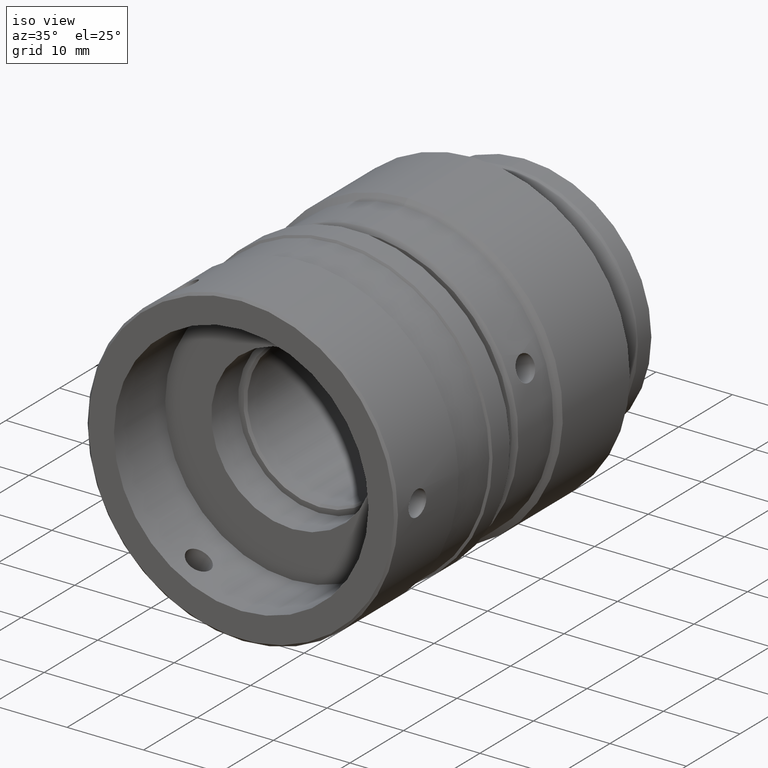
[diagram: clean part render]
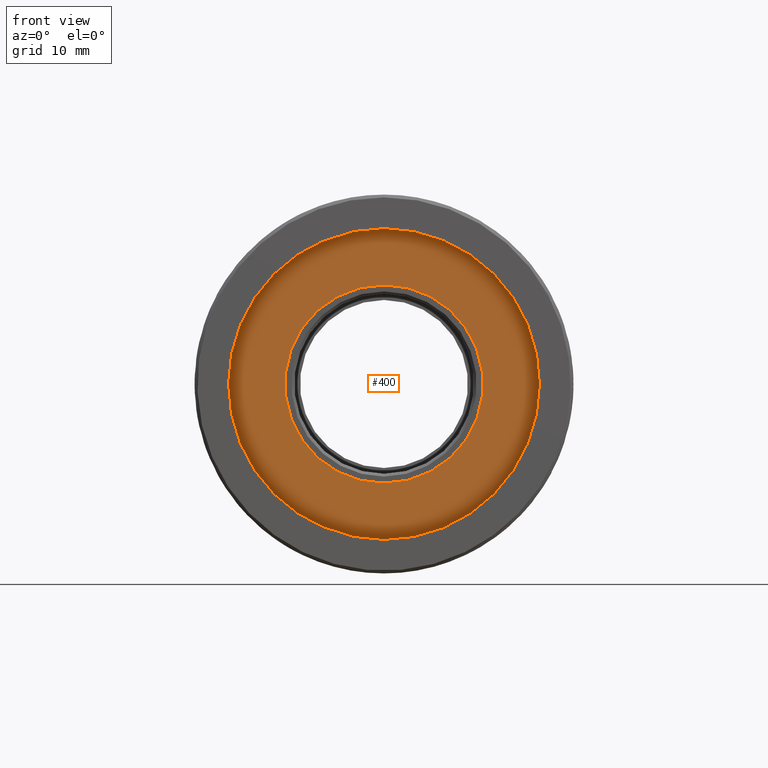
[diagram: tour spotlight — one face highlighted and labeled with its STEP entity id]
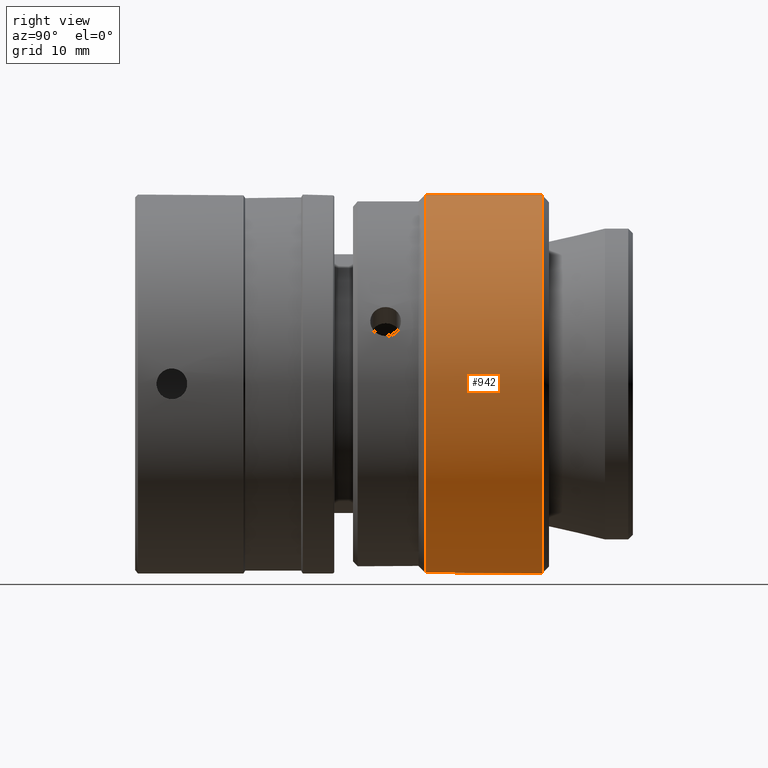
[diagram: tour spotlight — one face highlighted and labeled with its STEP entity id]
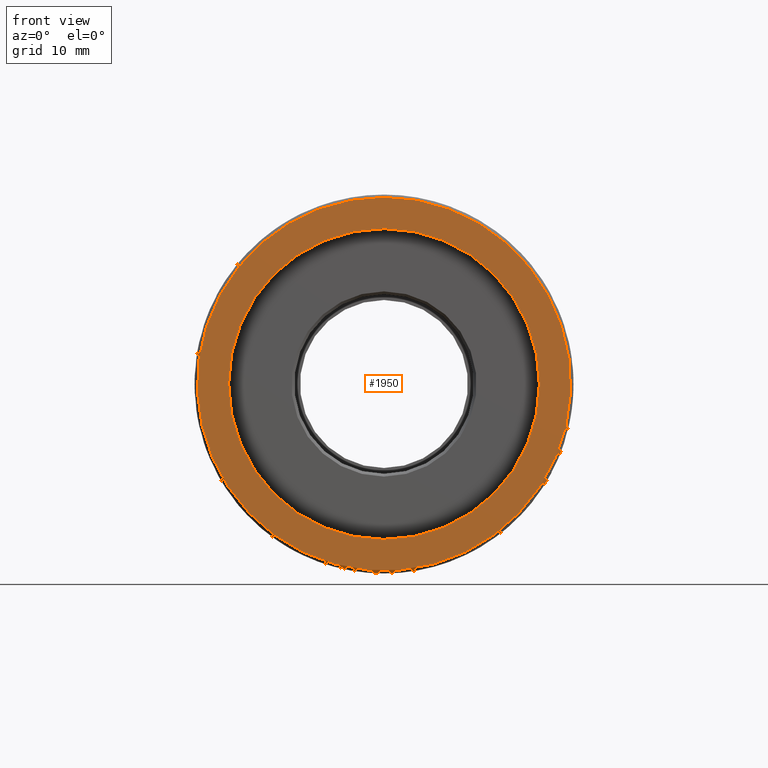
[diagram: tour spotlight — one face highlighted and labeled with its STEP entity id]
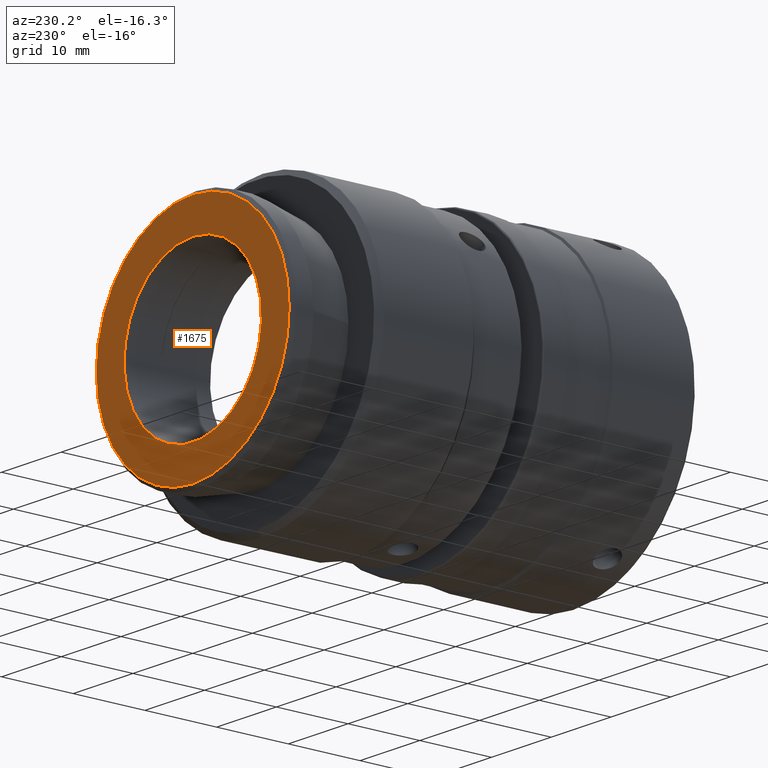
[diagram: tour spotlight — one face highlighted and labeled with its STEP entity id]
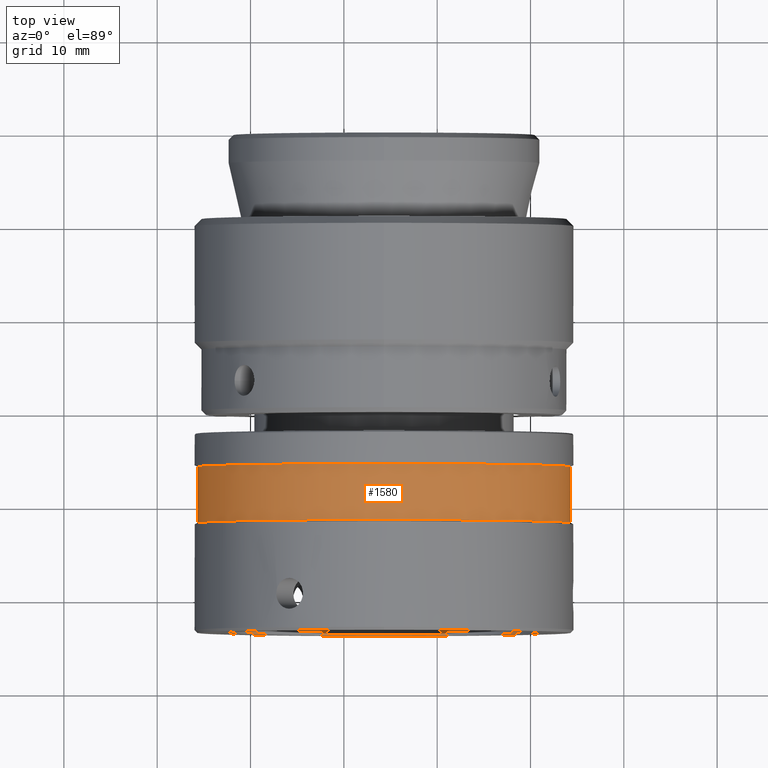
[diagram: tour spotlight — one face highlighted and labeled with its STEP entity id]
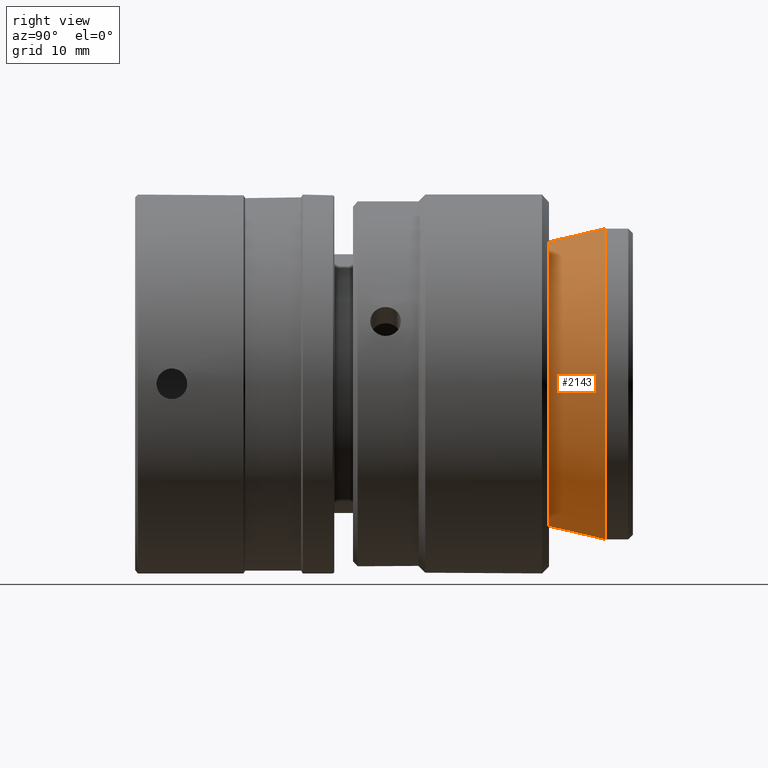
[diagram: tour spotlight — one face highlighted and labeled with its STEP entity id]
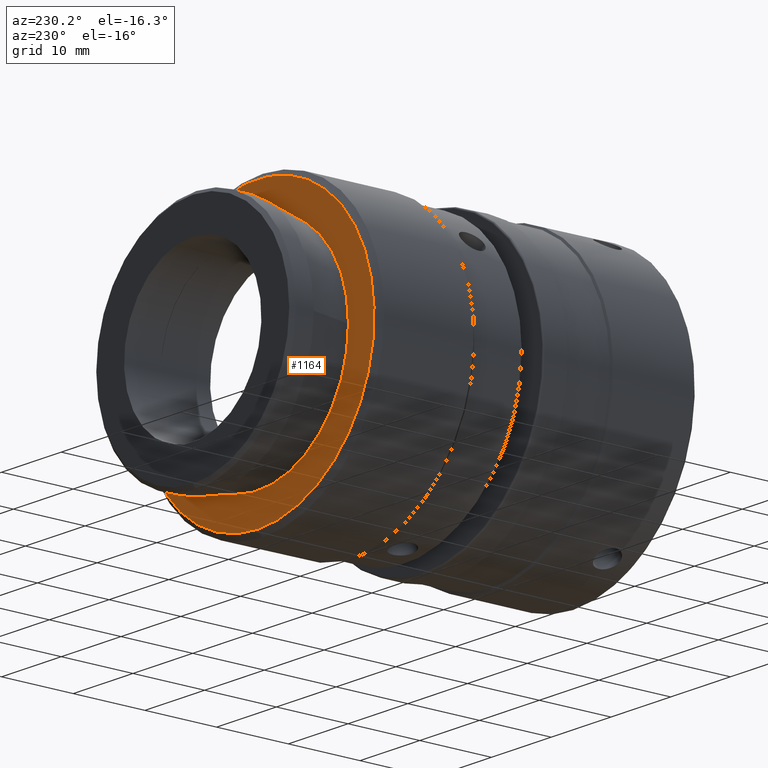
[diagram: tour spotlight — one face highlighted and labeled with its STEP entity id]
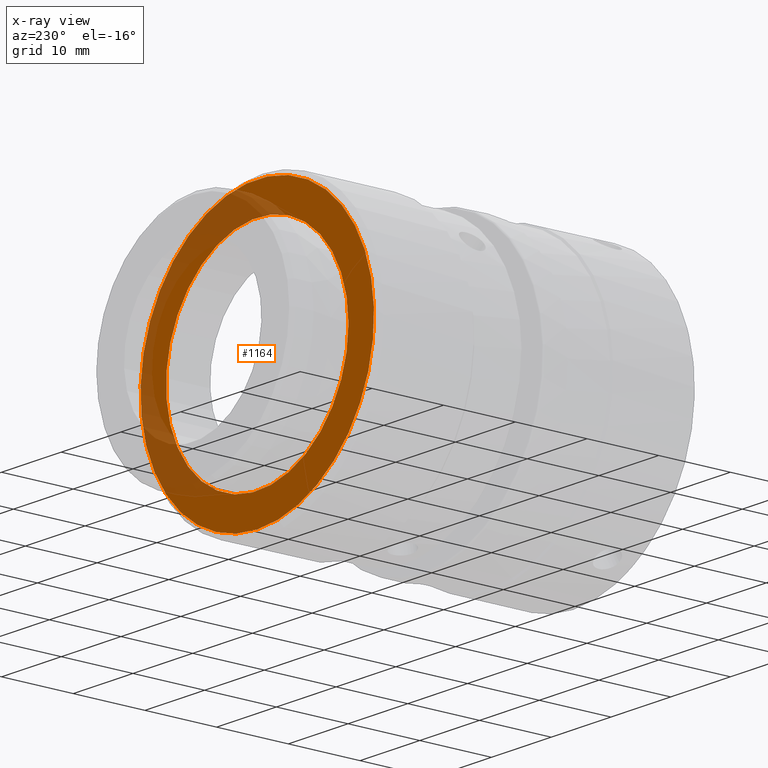
[diagram: x-ray of the same camera — body ghosted, this tour face saturated]
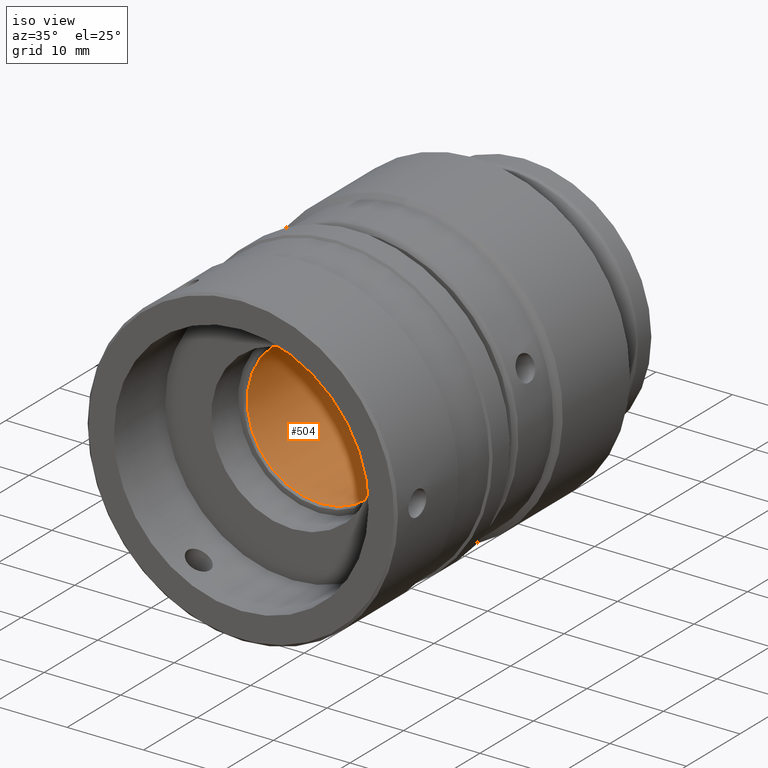
[diagram: tour spotlight — one face highlighted and labeled with its STEP entity id]
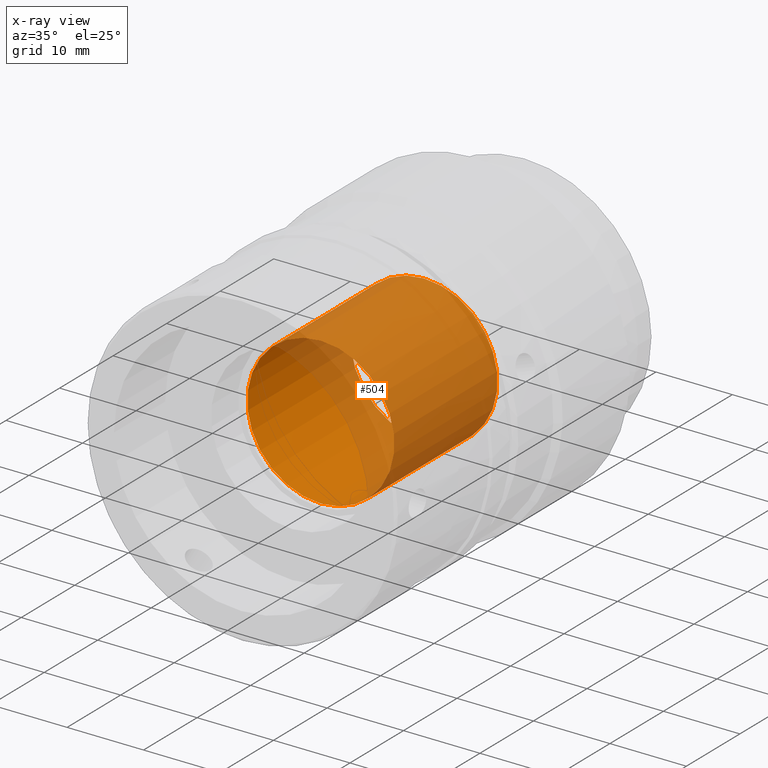
[diagram: x-ray of the same camera — body ghosted, this tour face saturated]
A machine part: a face-by-face anatomy tour. The part has 37 B-rep faces; the first image is the clean iso view, then the 8 largest visible faces are spotlighted one at a time (largest first), each with its STEP entity span.

Face 1 — front view, entity #400. In plain terms, the highlighted planar face has unit normal (0, -1, 0).
Definition (entity closure, byte-faithful):
#341 = FACE_BOUND ( 'NONE', #1559, .T. ) ;
#348 = ORIENTED_EDGE ( 'NONE', *, *, #1361, .T. ) ;
#400 = ADVANCED_FACE ( 'NONE', ( #1589, #341 ), #875, .T. ) ;
#499 = CARTESIAN_POINT ( 'NONE',  ( 14.30252365930601144, -14.05017350157723044, -6.938893903907228378E-15 ) ) ;
#529 = VERTEX_POINT ( 'NONE', #845 ) ;
#714 = CIRCLE ( 'NONE', #1160, 16.64999999999999858 ) ;
#845 = CARTESIAN_POINT ( 'NONE',  ( 14.30252365930601144, -14.05017350157723044, -16.65000000000000568 ) ) ;
#851 = DIRECTION ( 'NONE',  ( 0.000000000000000000, 0.000000000000000000, -1.000000000000000000 ) ) ;
#875 = PLANE ( 'NONE',  #1088 ) ;
#1088 = AXIS2_PLACEMENT_3D ( 'NONE', #1229, #1550, #2258 ) ;
#1098 = ORIENTED_EDGE ( 'NONE', *, *, #1816, .T. ) ;
#1160 = AXIS2_PLACEMENT_3D ( 'NONE', #1201, #2253, #1921 ) ;
#1172 = CIRCLE ( 'NONE', #1732, 10.62500000000000178 ) ;
#1201 = CARTESIAN_POINT ( 'NONE',  ( 14.30252365930601144, -14.05017350157723044, -6.938893903907228378E-15 ) ) ;
#1229 = CARTESIAN_POINT ( 'NONE',  ( 30.95252365930601002, -14.05017350157723044, -6.938893903907228378E-15 ) ) ;
#1361 = EDGE_CURVE ( 'NONE', #1495, #1495, #1172, .T. ) ;
#1495 = VERTEX_POINT ( 'NONE', #2205 ) ;
#1550 = DIRECTION ( 'NONE',  ( 0.000000000000000000, -1.000000000000000000, 0.000000000000000000 ) ) ;
#1559 = EDGE_LOOP ( 'NONE', ( #348 ) ) ;
#1589 = FACE_OUTER_BOUND ( 'NONE', #1956, .T. ) ;
#1732 = AXIS2_PLACEMENT_3D ( 'NONE', #499, #1915, #851 ) ;
#1816 = EDGE_CURVE ( 'NONE', #529, #529, #714, .T. ) ;
#1915 = DIRECTION ( 'NONE',  ( 0.000000000000000000, 1.000000000000000000, 0.000000000000000000 ) ) ;
#1921 = DIRECTION ( 'NONE',  ( 0.000000000000000000, 0.000000000000000000, -1.000000000000000000 ) ) ;
#1956 = EDGE_LOOP ( 'NONE', ( #1098 ) ) ;
#2205 = CARTESIAN_POINT ( 'NONE',  ( 14.30252365930601144, -14.05017350157723044, -10.62500000000000888 ) ) ;
#2253 = DIRECTION ( 'NONE',  ( -0.000000000000000000, -1.000000000000000000, -0.000000000000000000 ) ) ;
#2258 = DIRECTION ( 'NONE',  ( 0.000000000000000000, -0.000000000000000000, -1.000000000000000000 ) ) ;

Face 2 — right view, entity #942. In plain terms, the highlighted cylindrical surface (bore or boss wall) has radius 20.3 mm, axis along (0, 1, 0).
Definition (entity closure, byte-faithful):
#134 = VERTEX_POINT ( 'NONE', #311 ) ;
#268 = CYLINDRICAL_SURFACE ( 'NONE', #1462, 20.30000000000001137 ) ;
#311 = CARTESIAN_POINT ( 'NONE',  ( 14.30252365930601322, 19.98982649842304937, 20.30000000000001137 ) ) ;
#321 = EDGE_CURVE ( 'NONE', #134, #134, #790, .T. ) ;
#325 = ORIENTED_EDGE ( 'NONE', *, *, #321, .T. ) ;
#639 = CARTESIAN_POINT ( 'NONE',  ( 14.30252365930601322, 7.489826498423066248, 20.30000000000001137 ) ) ;
#781 = FACE_OUTER_BOUND ( 'NONE', #1438, .T. ) ;
#790 = CIRCLE ( 'NONE', #2059, 20.30000000000001137 ) ;
#816 = DIRECTION ( 'NONE',  ( 0.000000000000000000, 0.000000000000000000, 1.000000000000000000 ) ) ;
#817 = EDGE_CURVE ( 'NONE', #1725, #1725, #1914, .T. ) ;
#900 = AXIS2_PLACEMENT_3D ( 'NONE', #1411, #2120, #1659 ) ;
#942 = ADVANCED_FACE ( 'NONE', ( #781, #2069 ), #268, .T. ) ;
#1073 = DIRECTION ( 'NONE',  ( -0.000000000000000000, -1.000000000000000000, -0.000000000000000000 ) ) ;
#1094 = DIRECTION ( 'NONE',  ( 0.000000000000000000, 0.000000000000000000, 1.000000000000000000 ) ) ;
#1175 = CARTESIAN_POINT ( 'NONE',  ( 14.30252365930601322, 32.80747209517100771, 0.000000000000000000 ) ) ;
#1355 = DIRECTION ( 'NONE',  ( 0.000000000000000000, 1.000000000000000000, 0.000000000000000000 ) ) ;
#1411 = CARTESIAN_POINT ( 'NONE',  ( 14.30252365930601322, 7.489826498423066248, 0.000000000000000000 ) ) ;
#1438 = EDGE_LOOP ( 'NONE', ( #325 ) ) ;
#1462 = AXIS2_PLACEMENT_3D ( 'NONE', #1175, #1355, #816 ) ;
#1596 = EDGE_LOOP ( 'NONE', ( #2032 ) ) ;
#1659 = DIRECTION ( 'NONE',  ( 0.000000000000000000, 0.000000000000000000, 1.000000000000000000 ) ) ;
#1725 = VERTEX_POINT ( 'NONE', #639 ) ;
#1914 = CIRCLE ( 'NONE', #900, 20.30000000000001137 ) ;
#1968 = CARTESIAN_POINT ( 'NONE',  ( 14.30252365930601322, 19.98982649842304937, 0.000000000000000000 ) ) ;
#2032 = ORIENTED_EDGE ( 'NONE', *, *, #817, .T. ) ;
#2059 = AXIS2_PLACEMENT_3D ( 'NONE', #1968, #1073, #1094 ) ;
#2069 = FACE_OUTER_BOUND ( 'NONE', #1596, .T. ) ;
#2120 = DIRECTION ( 'NONE',  ( 0.000000000000000000, 1.000000000000000000, 0.000000000000000000 ) ) ;

Face 3 — front view, entity #1950. In plain terms, the highlighted planar face has unit normal (0, -1, 0).
Definition (entity closure, byte-faithful):
#79 = PLANE ( 'NONE',  #125 ) ;
#125 = AXIS2_PLACEMENT_3D ( 'NONE', #2040, #1329, #429 ) ;
#198 = CARTESIAN_POINT ( 'NONE',  ( 14.30252365930601144, -23.61017350157762351, -6.938893903907228378E-15 ) ) ;
#294 = FACE_BOUND ( 'NONE', #1146, .T. ) ;
#395 = CARTESIAN_POINT ( 'NONE',  ( 14.30252365930601144, -23.61017350157761641, -6.938893903907228378E-15 ) ) ;
#429 = DIRECTION ( 'NONE',  ( 0.000000000000000000, -0.000000000000000000, -1.000000000000000000 ) ) ;
#602 = FACE_OUTER_BOUND ( 'NONE', #1984, .T. ) ;
#821 = VERTEX_POINT ( 'NONE', #969 ) ;
#831 = CIRCLE ( 'NONE', #871, 20.00000000000019185 ) ;
#871 = AXIS2_PLACEMENT_3D ( 'NONE', #395, #1444, #1260 ) ;
#895 = DIRECTION ( 'NONE',  ( 0.000000000000000000, 0.000000000000000000, -1.000000000000000000 ) ) ;
#969 = CARTESIAN_POINT ( 'NONE',  ( 14.30252365930601144, -23.61017350157761641, 20.00000000000018474 ) ) ;
#1115 = EDGE_CURVE ( 'NONE', #1848, #1848, #1278, .T. ) ;
#1146 = EDGE_LOOP ( 'NONE', ( #1995 ) ) ;
#1227 = EDGE_CURVE ( 'NONE', #821, #821, #831, .T. ) ;
#1260 = DIRECTION ( 'NONE',  ( 0.000000000000000000, 0.000000000000000000, 1.000000000000000000 ) ) ;
#1272 = DIRECTION ( 'NONE',  ( 0.000000000000000000, 1.000000000000000000, 0.000000000000000000 ) ) ;
#1278 = CIRCLE ( 'NONE', #1352, 16.64999999999999858 ) ;
#1329 = DIRECTION ( 'NONE',  ( 0.000000000000000000, -1.000000000000000000, 0.000000000000000000 ) ) ;
#1346 = CARTESIAN_POINT ( 'NONE',  ( 14.30252365930601144, -23.61017350157762351, -16.65000000000000568 ) ) ;
#1352 = AXIS2_PLACEMENT_3D ( 'NONE', #198, #1272, #895 ) ;
#1444 = DIRECTION ( 'NONE',  ( -0.000000000000000000, 1.000000000000000000, 0.000000000000000000 ) ) ;
#1848 = VERTEX_POINT ( 'NONE', #1346 ) ;
#1950 = ADVANCED_FACE ( 'NONE', ( #602, #294 ), #79, .T. ) ;
#1984 = EDGE_LOOP ( 'NONE', ( #2191 ) ) ;
#1995 = ORIENTED_EDGE ( 'NONE', *, *, #1115, .T. ) ;
#2040 = CARTESIAN_POINT ( 'NONE',  ( 34.30252365930619618, -23.61017350157762351, -6.938893903907228378E-15 ) ) ;
#2191 = ORIENTED_EDGE ( 'NONE', *, *, #1227, .F. ) ;

Face 4 — auxiliary view, entity #1675. In plain terms, the highlighted planar face has unit normal (0, -1, 0).
Definition (entity closure, byte-faithful):
#70 = EDGE_CURVE ( 'NONE', #213, #213, #1276, .T. ) ;
#199 = CARTESIAN_POINT ( 'NONE',  ( 14.30252365930601322, 29.73982649842304937, 0.000000000000000000 ) ) ;
#213 = VERTEX_POINT ( 'NONE', #1449 ) ;
#286 = CIRCLE ( 'NONE', #432, 16.14999999999999858 ) ;
#384 = DIRECTION ( 'NONE',  ( 0.000000000000000000, -1.000000000000000000, 0.000000000000000000 ) ) ;
#409 = CARTESIAN_POINT ( 'NONE',  ( 11.43308296087714915, 29.73982649842304937, -16.40087833252231420 ) ) ;
#432 = AXIS2_PLACEMENT_3D ( 'NONE', #1788, #384, #726 ) ;
#624 = ORIENTED_EDGE ( 'NONE', *, *, #1197, .F. ) ;
#726 = DIRECTION ( 'NONE',  ( 0.000000000000000000, 0.000000000000000000, -1.000000000000000000 ) ) ;
#1021 = EDGE_LOOP ( 'NONE', ( #1410 ) ) ;
#1197 = EDGE_CURVE ( 'NONE', #2058, #2058, #286, .T. ) ;
#1237 = AXIS2_PLACEMENT_3D ( 'NONE', #409, #1699, #2007 ) ;
#1276 = CIRCLE ( 'NONE', #1872, 11.50000000000001066 ) ;
#1284 = DIRECTION ( 'NONE',  ( 0.000000000000000000, 0.000000000000000000, 1.000000000000000000 ) ) ;
#1295 = DIRECTION ( 'NONE',  ( 0.000000000000000000, 1.000000000000000000, 0.000000000000000000 ) ) ;
#1298 = PLANE ( 'NONE',  #1237 ) ;
#1385 = EDGE_LOOP ( 'NONE', ( #624 ) ) ;
#1410 = ORIENTED_EDGE ( 'NONE', *, *, #70, .F. ) ;
#1449 = CARTESIAN_POINT ( 'NONE',  ( 14.30252365930601322, 29.73982649842304937, 11.50000000000001066 ) ) ;
#1648 = FACE_OUTER_BOUND ( 'NONE', #1385, .T. ) ;
#1674 = CARTESIAN_POINT ( 'NONE',  ( 14.30252365930601322, 29.73982649842304937, -16.14999999999999858 ) ) ;
#1675 = ADVANCED_FACE ( 'NONE', ( #1648, #2033 ), #1298, .F. ) ;
#1699 = DIRECTION ( 'NONE',  ( 0.000000000000000000, -1.000000000000000000, 0.000000000000000000 ) ) ;
#1788 = CARTESIAN_POINT ( 'NONE',  ( 14.30252365930601322, 29.73982649842304937, 0.000000000000000000 ) ) ;
#1872 = AXIS2_PLACEMENT_3D ( 'NONE', #199, #1295, #1284 ) ;
#2007 = DIRECTION ( 'NONE',  ( 0.000000000000000000, -0.000000000000000000, -1.000000000000000000 ) ) ;
#2033 = FACE_BOUND ( 'NONE', #1021, .T. ) ;
#2058 = VERTEX_POINT ( 'NONE', #1674 ) ;

Face 5 — top view, entity #1580. In plain terms, the highlighted cylindrical surface (bore or boss wall) has radius 20 mm, axis along (-0, -1, -0).
Definition (entity closure, byte-faithful):
#187 = DIRECTION ( 'NONE',  ( -0.000000000000000000, -1.000000000000000000, -0.000000000000000000 ) ) ;
#241 = DIRECTION ( 'NONE',  ( 0.000000000000000000, -1.000000000000000000, 0.000000000000000000 ) ) ;
#259 = EDGE_CURVE ( 'NONE', #945, #945, #1614, .T. ) ;
#392 = CARTESIAN_POINT ( 'NONE',  ( 14.30252365930601144, -23.31017350157762991, -6.938893903907228378E-15 ) ) ;
#402 = FACE_OUTER_BOUND ( 'NONE', #806, .T. ) ;
#420 = AXIS2_PLACEMENT_3D ( 'NONE', #1503, #241, #453 ) ;
#453 = DIRECTION ( 'NONE',  ( 0.000000000000000000, 0.000000000000000000, -1.000000000000000000 ) ) ;
#458 = AXIS2_PLACEMENT_3D ( 'NONE', #392, #187, #1424 ) ;
#519 = CARTESIAN_POINT ( 'NONE',  ( 14.30252365930601144, -11.81431868997687928, -20.00000000000000355 ) ) ;
#573 = CYLINDRICAL_SURFACE ( 'NONE', #458, 19.99999999999999645 ) ;
#687 = ORIENTED_EDGE ( 'NONE', *, *, #259, .T. ) ;
#721 = AXIS2_PLACEMENT_3D ( 'NONE', #1453, #1978, #1778 ) ;
#806 = EDGE_LOOP ( 'NONE', ( #2227 ) ) ;
#859 = EDGE_LOOP ( 'NONE', ( #687 ) ) ;
#945 = VERTEX_POINT ( 'NONE', #1178 ) ;
#1178 = CARTESIAN_POINT ( 'NONE',  ( 14.30252365930601144, -5.813378582337375811, -20.00000000000000355 ) ) ;
#1424 = DIRECTION ( 'NONE',  ( 0.000000000000000000, 0.000000000000000000, -1.000000000000000000 ) ) ;
#1453 = CARTESIAN_POINT ( 'NONE',  ( 14.30252365930601144, -5.813378582337375811, -6.938893903907228378E-15 ) ) ;
#1465 = FACE_OUTER_BOUND ( 'NONE', #859, .T. ) ;
#1503 = CARTESIAN_POINT ( 'NONE',  ( 14.30252365930601144, -11.81431868997687928, -6.938893903907228378E-15 ) ) ;
#1571 = VERTEX_POINT ( 'NONE', #519 ) ;
#1580 = ADVANCED_FACE ( 'NONE', ( #402, #1465 ), #573, .T. ) ;
#1614 = CIRCLE ( 'NONE', #721, 19.99999999999999645 ) ;
#1778 = DIRECTION ( 'NONE',  ( 0.000000000000000000, 0.000000000000000000, -1.000000000000000000 ) ) ;
#1906 = EDGE_CURVE ( 'NONE', #1571, #1571, #2233, .T. ) ;
#1978 = DIRECTION ( 'NONE',  ( -0.000000000000000000, -1.000000000000000000, -0.000000000000000000 ) ) ;
#2227 = ORIENTED_EDGE ( 'NONE', *, *, #1906, .F. ) ;
#2233 = CIRCLE ( 'NONE', #420, 19.99999999999999645 ) ;

Face 6 — right view, entity #2143. In plain terms, the highlighted conical surface has half-angle 13 deg.
Definition (entity closure, byte-faithful):
#221 = EDGE_LOOP ( 'NONE', ( #530 ) ) ;
#274 = VERTEX_POINT ( 'NONE', #2072 ) ;
#355 = AXIS2_PLACEMENT_3D ( 'NONE', #1452, #382, #1270 ) ;
#382 = DIRECTION ( 'NONE',  ( 3.125627884642895048E-16, 1.000000000000000000, -0.000000000000000000 ) ) ;
#416 = CARTESIAN_POINT ( 'NONE',  ( 14.30252365930601322, 26.73982649842303871, 0.000000000000000000 ) ) ;
#445 = ORIENTED_EDGE ( 'NONE', *, *, #637, .T. ) ;
#530 = ORIENTED_EDGE ( 'NONE', *, *, #1564, .T. ) ;
#626 = CARTESIAN_POINT ( 'NONE',  ( -0.9622671939405851305, 20.73982649842305293, 0.000000000000000000 ) ) ;
#637 = EDGE_CURVE ( 'NONE', #274, #274, #1980, .T. ) ;
#1024 = CARTESIAN_POINT ( 'NONE',  ( 14.30252365930601322, 26.73982649842304582, 0.000000000000000000 ) ) ;
#1141 = DIRECTION ( 'NONE',  ( 3.125627884642895048E-16, 1.000000000000000000, -0.000000000000000000 ) ) ;
#1187 = EDGE_LOOP ( 'NONE', ( #445 ) ) ;
#1270 = DIRECTION ( 'NONE',  ( -1.000000000000000000, 2.272842769552727960E-16, 0.000000000000000000 ) ) ;
#1304 = FACE_OUTER_BOUND ( 'NONE', #1187, .T. ) ;
#1452 = CARTESIAN_POINT ( 'NONE',  ( 14.30252365930601144, 20.73982649842304937, 0.000000000000000000 ) ) ;
#1526 = AXIS2_PLACEMENT_3D ( 'NONE', #416, #1141, #2164 ) ;
#1564 = EDGE_CURVE ( 'NONE', #2217, #2217, #2128, .T. ) ;
#1728 = DIRECTION ( 'NONE',  ( -1.026287140115459955E-16, -1.000000000000000000, 1.795556328396082870E-17 ) ) ;
#1768 = AXIS2_PLACEMENT_3D ( 'NONE', #1024, #1728, #2112 ) ;
#1980 = CIRCLE ( 'NONE', #1768, 16.65000000000000568 ) ;
#2072 = CARTESIAN_POINT ( 'NONE',  ( -2.347476340693991581, 26.73982649842304227, 0.000000000000000000 ) ) ;
#2112 = DIRECTION ( 'NONE',  ( -1.000000000000000000, -2.083751923095263037E-16, 0.000000000000000000 ) ) ;
#2128 = CIRCLE ( 'NONE', #355, 15.26479085324659657 ) ;
#2143 = ADVANCED_FACE ( 'NONE', ( #1304, #2198 ), #2232, .T. ) ;
#2164 = DIRECTION ( 'NONE',  ( -1.000000000000000000, 4.167503846190526074E-16, 0.000000000000000000 ) ) ;
#2198 = FACE_BOUND ( 'NONE', #221, .T. ) ;
#2217 = VERTEX_POINT ( 'NONE', #626 ) ;
#2232 = CONICAL_SURFACE ( 'NONE', #1526, 16.65000000000000568, 0.2268928027592679586 ) ;

Face 7 — auxiliary view, entity #1164. An x-ray twin of the same camera follows (body ghosted, this face saturated) — the face is partly hidden behind the body. In plain terms, the highlighted planar face has unit normal (0, -1, 0).
Definition (entity closure, byte-faithful):
#227 = CARTESIAN_POINT ( 'NONE',  ( 14.30252365930601322, 20.73982649842306358, 0.000000000000000000 ) ) ;
#244 = CIRCLE ( 'NONE', #1875, 19.54999999999999716 ) ;
#355 = AXIS2_PLACEMENT_3D ( 'NONE', #1452, #382, #1270 ) ;
#382 = DIRECTION ( 'NONE',  ( 3.125627884642895048E-16, 1.000000000000000000, -0.000000000000000000 ) ) ;
#398 = EDGE_LOOP ( 'NONE', ( #2097 ) ) ;
#415 = DIRECTION ( 'NONE',  ( 0.000000000000000000, -0.000000000000000000, -1.000000000000000000 ) ) ;
#546 = FACE_OUTER_BOUND ( 'NONE', #882, .T. ) ;
#626 = CARTESIAN_POINT ( 'NONE',  ( -0.9622671939405851305, 20.73982649842305293, 0.000000000000000000 ) ) ;
#734 = PLANE ( 'NONE',  #2285 ) ;
#882 = EDGE_LOOP ( 'NONE', ( #1429 ) ) ;
#915 = CARTESIAN_POINT ( 'NONE',  ( 10.80404641137172206, 20.73982649842306358, -19.99626607508727005 ) ) ;
#1086 = EDGE_CURVE ( 'NONE', #2242, #2242, #244, .T. ) ;
#1114 = FACE_BOUND ( 'NONE', #398, .T. ) ;
#1164 = ADVANCED_FACE ( 'NONE', ( #546, #1114 ), #734, .F. ) ;
#1270 = DIRECTION ( 'NONE',  ( -1.000000000000000000, 2.272842769552727960E-16, 0.000000000000000000 ) ) ;
#1429 = ORIENTED_EDGE ( 'NONE', *, *, #1086, .F. ) ;
#1452 = CARTESIAN_POINT ( 'NONE',  ( 14.30252365930601144, 20.73982649842304937, 0.000000000000000000 ) ) ;
#1546 = CARTESIAN_POINT ( 'NONE',  ( 14.30252365930601322, 20.73982649842306358, -19.54999999999999716 ) ) ;
#1564 = EDGE_CURVE ( 'NONE', #2217, #2217, #2128, .T. ) ;
#1641 = DIRECTION ( 'NONE',  ( 0.000000000000000000, 0.000000000000000000, -1.000000000000000000 ) ) ;
#1875 = AXIS2_PLACEMENT_3D ( 'NONE', #227, #2135, #1641 ) ;
#2097 = ORIENTED_EDGE ( 'NONE', *, *, #1564, .F. ) ;
#2128 = CIRCLE ( 'NONE', #355, 15.26479085324659657 ) ;
#2135 = DIRECTION ( 'NONE',  ( 0.000000000000000000, -1.000000000000000000, 0.000000000000000000 ) ) ;
#2174 = DIRECTION ( 'NONE',  ( 0.000000000000000000, -1.000000000000000000, 0.000000000000000000 ) ) ;
#2217 = VERTEX_POINT ( 'NONE', #626 ) ;
#2242 = VERTEX_POINT ( 'NONE', #1546 ) ;
#2285 = AXIS2_PLACEMENT_3D ( 'NONE', #915, #2174, #415 ) ;

Face 8 — iso view, entity #504. An x-ray twin of the same camera follows (body ghosted, this face saturated) — the face is partly hidden behind the body. In plain terms, the highlighted cylindrical surface (bore or boss wall) has radius 9.625 mm, axis along (-0, -1, -0).
Definition (entity closure, byte-faithful):
#23 = CIRCLE ( 'NONE', #1312, 9.625000000000431655 ) ;
#54 = AXIS2_PLACEMENT_3D ( 'NONE', #1927, #1036, #2100 ) ;
#97 = CARTESIAN_POINT ( 'NONE',  ( 14.30252365930601144, 10.52731187282260450, -9.625000000000230926 ) ) ;
#110 = VERTEX_POINT ( 'NONE', #97 ) ;
#315 = FACE_OUTER_BOUND ( 'NONE', #1585, .T. ) ;
#397 = CARTESIAN_POINT ( 'NONE',  ( 14.30252365930601144, -8.750173501577229729, -1.387778780781445676E-14 ) ) ;
#468 = CIRCLE ( 'NONE', #54, 9.625000000000223821 ) ;
#498 = CARTESIAN_POINT ( 'NONE',  ( 14.30252365930601144, -23.31017350157762991, -6.938893903907228378E-15 ) ) ;
#504 = ADVANCED_FACE ( 'NONE', ( #2284, #315 ), #642, .F. ) ;
#518 = EDGE_CURVE ( 'NONE', #110, #110, #468, .T. ) ;
#642 = CYLINDRICAL_SURFACE ( 'NONE', #648, 9.625000000000223821 ) ;
#648 = AXIS2_PLACEMENT_3D ( 'NONE', #498, #1401, #2076 ) ;
#804 = EDGE_CURVE ( 'NONE', #1334, #1334, #23, .T. ) ;
#1036 = DIRECTION ( 'NONE',  ( -0.000000000000000000, -1.000000000000000000, -0.000000000000000000 ) ) ;
#1135 = ORIENTED_EDGE ( 'NONE', *, *, #518, .F. ) ;
#1254 = EDGE_LOOP ( 'NONE', ( #1135 ) ) ;
#1263 = DIRECTION ( 'NONE',  ( 0.000000000000000000, 0.000000000000000000, -1.000000000000000000 ) ) ;
#1312 = AXIS2_PLACEMENT_3D ( 'NONE', #397, #1586, #1263 ) ;
#1334 = VERTEX_POINT ( 'NONE', #1371 ) ;
#1371 = CARTESIAN_POINT ( 'NONE',  ( 14.30252365930601144, -8.750173501577229729, -9.625000000000445866 ) ) ;
#1401 = DIRECTION ( 'NONE',  ( -0.000000000000000000, -1.000000000000000000, -0.000000000000000000 ) ) ;
#1419 = ORIENTED_EDGE ( 'NONE', *, *, #804, .T. ) ;
#1585 = EDGE_LOOP ( 'NONE', ( #1419 ) ) ;
#1586 = DIRECTION ( 'NONE',  ( 0.000000000000000000, -1.000000000000000000, 0.000000000000000000 ) ) ;
#1927 = CARTESIAN_POINT ( 'NONE',  ( 14.30252365930601144, 10.52731187282260450, -6.938893903907228378E-15 ) ) ;
#2076 = DIRECTION ( 'NONE',  ( 0.000000000000000000, 0.000000000000000000, -1.000000000000000000 ) ) ;
#2100 = DIRECTION ( 'NONE',  ( 0.000000000000000000, 0.000000000000000000, -1.000000000000000000 ) ) ;
#2284 = FACE_OUTER_BOUND ( 'NONE', #1254, .T. ) ;